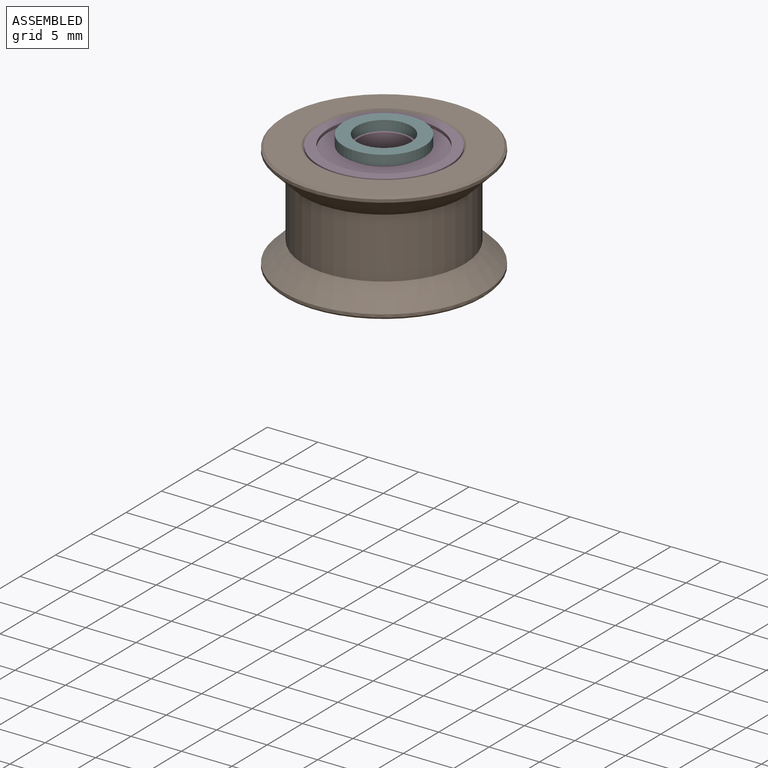
[diagram: assembled view]
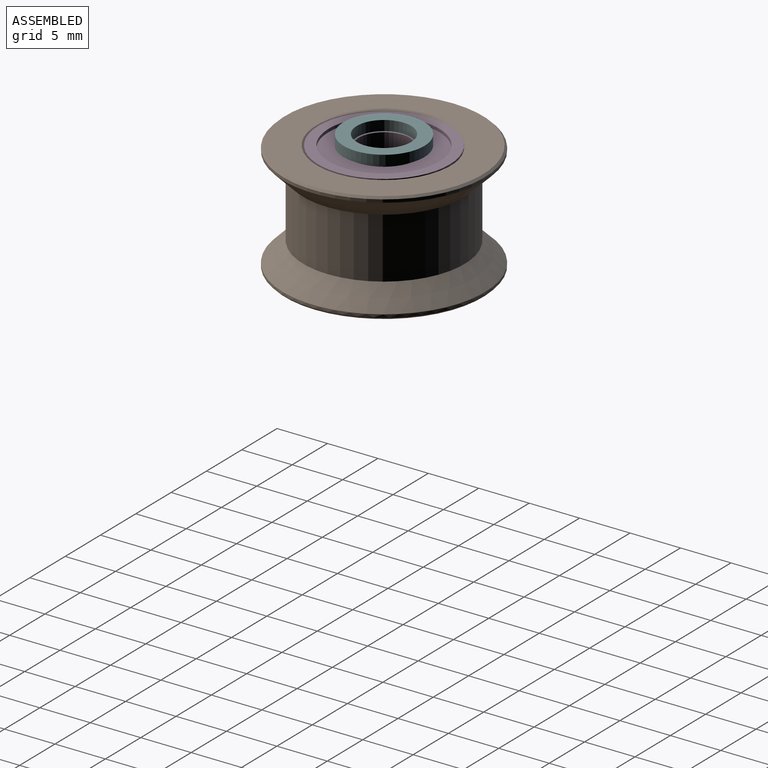
[diagram: assembled view, second angle]
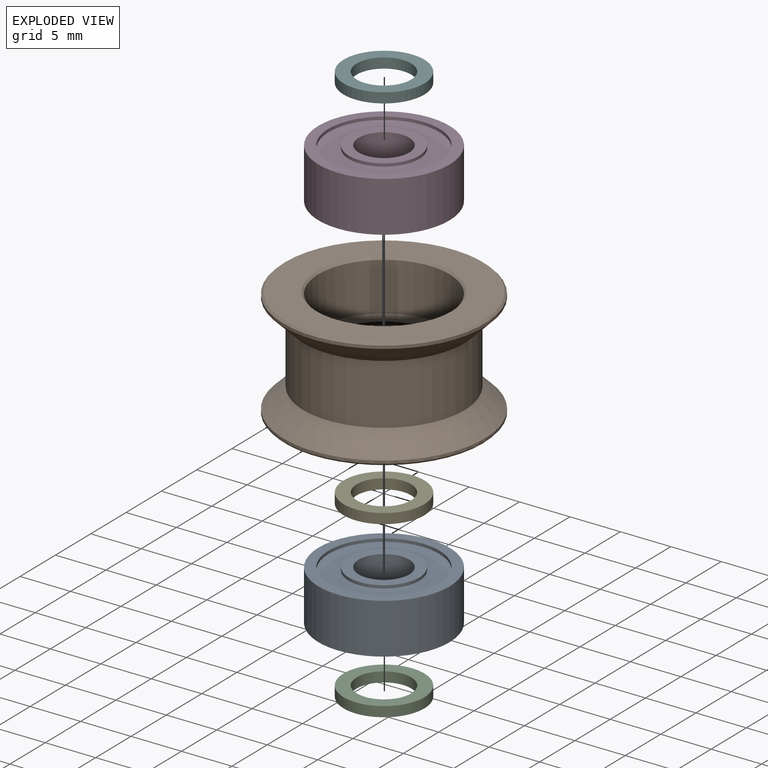
[diagram: exploded view]
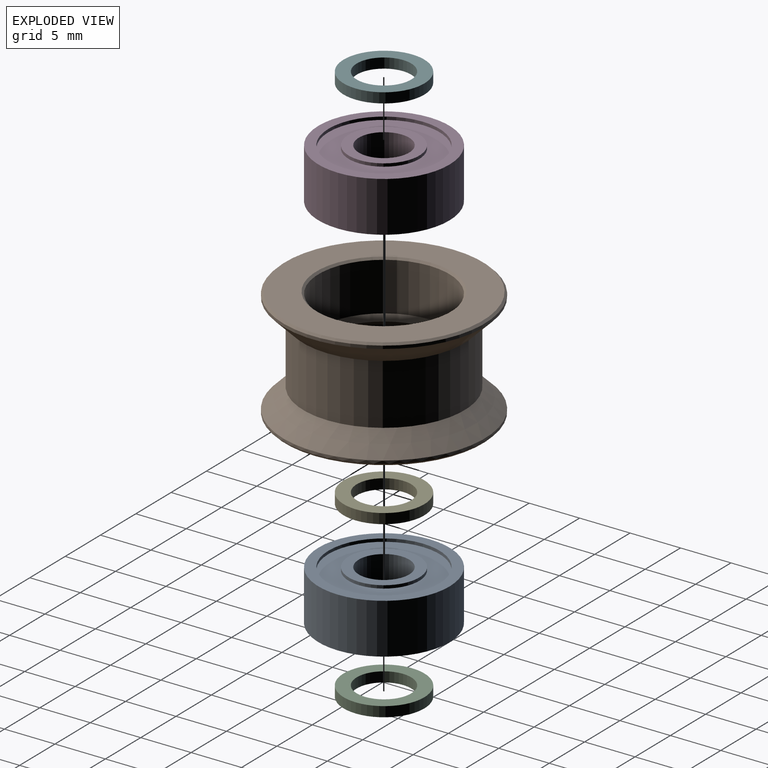
[diagram: exploded view, second angle]
ASSEMBLY  parts=6 mates=5
PART A: 12 faces, bbox 13x13x5 mm
  f0: cylinder r=5.5mm len=11mm, axis (0,0,-1), area 10.4mm2, adj f1,f11
  f1: plane 11x11mm, normal (0,0,-1), area 56.5mm2, adj f0,f2
  f2: cylinder r=3.5mm len=7mm, axis (0,0,-1), area 6.6mm2, adj f1,f3
  f3: plane 7x7mm, normal (0,0,-1), area 18.8mm2, adj f2,f4
  f4: cylinder r=2.5mm len=5mm, axis (0,0,-1), area 78.5mm2, adj f3,f5
  f5: plane 7x7mm, normal (0,0,1), area 18.8mm2, adj f4,f6
  f6: cylinder r=3.5mm len=7mm, axis (0,0,-1), area 6.6mm2, adj f5,f7
  f7: plane 11x11mm, normal (0,0,1), area 56.5mm2, adj f6,f8
  f8: cylinder r=5.5mm len=11mm, axis (0,0,-1), area 10.4mm2, adj f7,f9
  f9: plane 13x13mm, normal (0,0,1), area 37.7mm2, adj f8,f10
  f10: cylinder r=6.5mm len=13mm, axis (0,0,-1), area 204.2mm2, adj f9,f11
  f11: plane 13x13mm, normal (0,0,-1), area 37.7mm2, adj f0,f10
PART B: 15 faces, bbox 20x20x11 mm
  f0: cylinder r=6.5mm len=13mm, axis (0,0,-1), area 196mm2, adj f10,f14
  f1: plane 19.6x19.6mm, normal (0,0,1), area 160.7mm2, adj f13,f14
  f2: cylinder r=10mm len=20mm, axis (0,0,-1), area 18.8mm2, adj f3,f13
  f3: cone r=10mm half-angle=45deg, axis (0,0,1), area 159.9mm2, adj f2,f4
  f4: cylinder r=8mm len=16mm, axis (0,0,-1), area 301.6mm2, adj f3,f5
  f5: cone r=8mm half-angle=45deg, axis (0,0,-1), area 159.9mm2, adj f4,f6
  f6: cylinder r=10mm len=20mm, axis (0,0,-1), area 18.8mm2, adj f5,f12
  f7: plane 19.6x19.6mm, normal (0,0,-1), area 160.7mm2, adj f11,f12
  f8: cylinder r=6.5mm len=13mm, axis (0,0,-1), area 196mm2, adj f9,f11
  f9: cone r=6mm half-angle=45deg, axis (0,0,-1), area 27.8mm2, adj f8,f10
  f10: cone r=6.5mm half-angle=45deg, axis (0,0,1), area 27.8mm2, adj f0,f9
  f11: cone r=6.5mm half-angle=45deg, axis (0,0,-1), area 11.7mm2, adj f7,f8
  f12: cone r=9.8mm half-angle=45deg, axis (0,0,1), area 17.6mm2, adj f6,f7
  f13: cone r=10mm half-angle=45deg, axis (0,0,-1), area 17.6mm2, adj f1,f2
  f14: cone r=6.7mm half-angle=45deg, axis (0,0,1), area 11.7mm2, adj f0,f1
PART C: 4 faces, bbox 8x8x1 mm
  f0: cylinder r=2.7mm len=5.4mm, axis (0,0,-1), area 17mm2, adj f2,f3
  f1: cylinder r=4mm len=8mm, axis (0,0,-1), area 25.1mm2, adj f2,f3
  f2: plane 8x8mm, normal (0,0,1), area 27.4mm2, adj f0,f1
  f3: plane 8x8mm, normal (0,0,-1), area 27.4mm2, adj f0,f1
PART D: same geometry as A
PART E: same geometry as C
PART F: same geometry as C
PLACE A t=(13.02,7.23,-3.43)mm
PLACE B t=(13.02,7.23,-0.43)mm
PLACE C rot(axis=(1,0,0),180deg) t=(13.02,7.23,-5.93)mm
PLACE D t=(13.02,7.23,2.57)mm
PLACE E t=(13.02,7.23,-0.93)mm
PLACE F rot(axis=(1,0,0),180deg) t=(13.02,7.23,6.07)mm
MATE fastened E.f1 <-> D.f0  axis (0,0,1) through (13.02,7.23,0.07)mm
MATE fastened A.f0 <-> E.f1  axis (0,0,1) through (13.02,7.23,-0.93)mm
MATE fastened D.f0 <-> B.f0  axis (0,0,-1) through (13.02,7.23,0.07)mm
MATE fastened C.f1 <-> A.f0  axis (0,0,1) through (13.02,7.23,-5.93)mm
MATE fastened D.f0 <-> F.f1  axis (0,0,1) through (13.02,7.23,5.07)mm
